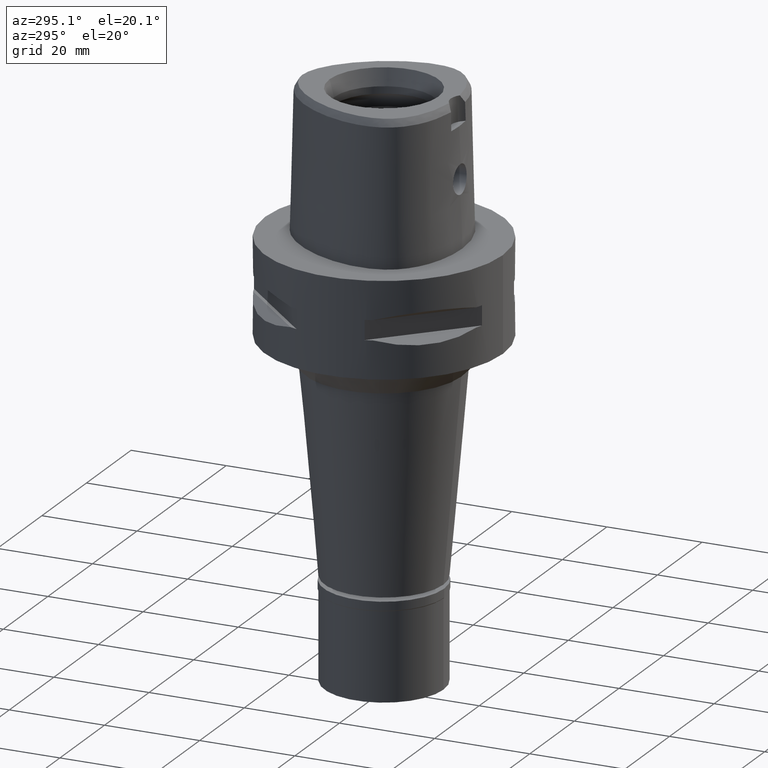
[diagram: clean part render]
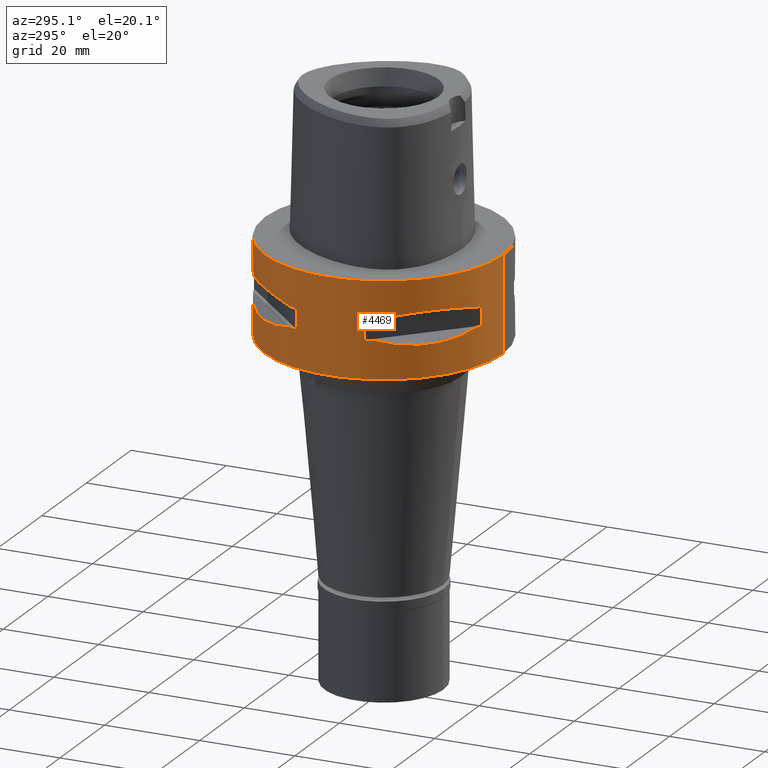
[diagram: same view with one face highlighted and labeled with its STEP entity id]
A machine part, auxiliary view. The second image highlights one B-rep face of the part: STEP entity #4469.
In plain terms, the highlighted cylindrical surface (partial cylindrical patch) has radius 25 mm, axis along (0, 0, -1).
Its self-contained STEP definition (entity closure, byte-faithful):
#33 = CARTESIAN_POINT ( 'NONE',  ( -20.97251445226615019, 13.60713573002994181, -13.06082541678091324 ) ) ;
#84 = CARTESIAN_POINT ( 'NONE',  ( -8.646484890751999330, -23.45715880140000209, -7.949999999998999201 ) ) ;
#101 = CARTESIAN_POINT ( 'NONE',  ( 0.0000000000000000000, 1.275959500031999927E-14, -7.950000000000000178 ) ) ;
#109 = CARTESIAN_POINT ( 'NONE',  ( -11.99636231264436859, -22.00752022556849141, -7.175618606703324964 ) ) ;
#122 = CIRCLE ( 'NONE', #3397, 25.00000000000000000 ) ;
#134 = AXIS2_PLACEMENT_3D ( 'NONE', #1777, #4801, #582 ) ;
#137 = VERTEX_POINT ( 'NONE', #3194 ) ;
#250 = VERTEX_POINT ( 'NONE', #3787 ) ;
#259 = CARTESIAN_POINT ( 'NONE',  ( 0.0000000000000000000, 1.275959500031999927E-14, 0.0000000000000000000 ) ) ;
#260 = CARTESIAN_POINT ( 'NONE',  ( -23.45715880140000209, -8.646484890756999775, -12.05000000000000071 ) ) ;
#272 = VERTEX_POINT ( 'NONE', #1405 ) ;
#274 = EDGE_CURVE ( 'NONE', #2301, #1001, #772, .T. ) ;
#313 = CARTESIAN_POINT ( 'NONE',  ( -13.60713573003076249, -20.97251445226584110, -13.06082541678113174 ) ) ;
#324 = CARTESIAN_POINT ( 'NONE',  ( -16.42437865147239151, 18.93096040785500378, -6.622505547239580181 ) ) ;
#376 = AXIS2_PLACEMENT_3D ( 'NONE', #2982, #3382, #4195 ) ;
#385 = CARTESIAN_POINT ( 'NONE',  ( -19.18226349636000805, 16.07509500021993887, -13.33749867752047358 ) ) ;
#485 = CARTESIAN_POINT ( 'NONE',  ( -20.06077645874711379, -15.02693924547571847, -6.733132781305682713 ) ) ;
#550 = DIRECTION ( 'NONE',  ( -0.9581110799190402094, -0.2863968549694120291, 0.0000000000000000000 ) ) ;
#581 = CARTESIAN_POINT ( 'NONE',  ( -22.58788056562029922, -10.78455809745187111, -12.56798337782941744 ) ) ;
#582 = DIRECTION ( 'NONE',  ( -0.9382863520558295534, 0.3458593956303108730, 0.0000000000000000000 ) ) ;
#620 = CARTESIAN_POINT ( 'NONE',  ( 0.0000000000000000000, 1.275959500031999927E-14, -7.950000000000000178 ) ) ;
#642 = DIRECTION ( 'NONE',  ( 0.0000000000000000000, 0.0000000000000000000, -1.000000000000000000 ) ) ;
#663 = DIRECTION ( 'NONE',  ( 0.0000000000000000000, -1.000000000000000000, 0.0000000000000000000 ) ) ;
#664 = CARTESIAN_POINT ( 'NONE',  ( -18.92421359266165126, -16.43106916201666934, -13.37747608848409264 ) ) ;
#667 = ORIENTED_EDGE ( 'NONE', *, *, #2480, .F. ) ;
#686 = CARTESIAN_POINT ( 'NONE',  ( -20.02826730454556170, -15.06560254766883666, -13.27075471794798744 ) ) ;
#726 = ORIENTED_EDGE ( 'NONE', *, *, #1334, .T. ) ;
#749 = ORIENTED_EDGE ( 'NONE', *, *, #1706, .T. ) ;
#752 = AXIS2_PLACEMENT_3D ( 'NONE', #2122, #642, #2219 ) ;
#753 = CARTESIAN_POINT ( 'NONE',  ( -13.48572973711170953, 21.05082155772122832, -13.04323036965318039 ) ) ;
#772 = CIRCLE ( 'NONE', #2213, 25.00000000000000000 ) ;
#783 = CARTESIAN_POINT ( 'NONE',  ( -23.45715880140000209, 8.646484890751999330, -12.05000000000000071 ) ) ;
#826 = ORIENTED_EDGE ( 'NONE', *, *, #3730, .T. ) ;
#877 = EDGE_LOOP ( 'NONE', ( #2470, #3795, #4261, #1036, #749, #2183, #1690, #2415 ) ) ;
#900 = EDGE_CURVE ( 'NONE', #1409, #3745, #4224, .T. ) ;
#933 = FACE_OUTER_BOUND ( 'NONE', #4647, .T. ) ;
#947 = LINE ( 'NONE', #4814, #4533 ) ;
#977 = CARTESIAN_POINT ( 'NONE',  ( -8.646484890751999330, 23.45715880140000209, -7.949999999998999201 ) ) ;
#1001 = VERTEX_POINT ( 'NONE', #4134 ) ;
#1036 = ORIENTED_EDGE ( 'NONE', *, *, #4530, .F. ) ;
#1053 = B_SPLINE_CURVE_WITH_KNOTS ( 'NONE', 3,
 ( #3751, #4509, #3384, #1136, #1944, #2579, #4531, #753, #4951, #4925, #2640, #4196, #1851, #385, #3847, #1544, #3052, #4595, #1068, #3459, #33, #1164, #2664, #783 ),
 .UNSPECIFIED., .F., .F.,
 ( 4, 1, 1, 1, 1, 1, 2, 2, 2, 1, 1, 1, 1, 1, 2, 2, 4 ),
 ( 0.0000000000000000000, 0.1250000000000042744, 0.1875000000000064115, 0.2187500000000075218, 0.2343750000000079659, 0.2421875000000081601, 0.2460937500000082989, 0.2500000000000084377, 0.5000000000000065503, 0.6250000000000055511, 0.6875000000000051070, 0.7187500000000047740, 0.7343750000000045519, 0.7421875000000042188, 0.7460937500000041078, 0.7500000000000039968, 1.000000000000000000 ),
 .UNSPECIFIED. ) ;
#1065 = CARTESIAN_POINT ( 'NONE',  ( -21.82791133048418786, -12.20403021317722292, -12.83722430138600323 ) ) ;
#1068 = CARTESIAN_POINT ( 'NONE',  ( -20.92801700160071476, 13.67544437571354266, -13.07054629644097687 ) ) ;
#1072 = CARTESIAN_POINT ( 'NONE',  ( 0.0000000000000000000, 25.00000000000000000, 0.0000000000000000000 ) ) ;
#1103 = CARTESIAN_POINT ( 'NONE',  ( -22.82437128824117778, 10.36318218117757084, -7.507495686413086844 ) ) ;
#1110 = VERTEX_POINT ( 'NONE', #1223 ) ;
#1111 = AXIS2_PLACEMENT_3D ( 'NONE', #3129, #4672, #1998 ) ;
#1136 = CARTESIAN_POINT ( 'NONE',  ( -12.20403021318853476, 21.82791133048002763, -12.83722430138890225 ) ) ;
#1139 = VERTEX_POINT ( 'NONE', #4431 ) ;
#1162 = EDGE_CURVE ( 'NONE', #250, #1959, #3660, .T. ) ;
#1164 = CARTESIAN_POINT ( 'NONE',  ( -21.99328990738197120, 12.03062603426555199, -12.83394786308387481 ) ) ;
#1223 = CARTESIAN_POINT ( 'NONE',  ( -23.45715880140000209, -8.646484890751999330, -7.949999999998999201 ) ) ;
#1290 = CARTESIAN_POINT ( 'NONE',  ( -23.45715880140000209, 8.646484890751999330, -12.05000000000000071 ) ) ;
#1324 = CIRCLE ( 'NONE', #4130, 24.99999999999999645 ) ;
#1332 = VERTEX_POINT ( 'NONE', #4151 ) ;
#1333 = CARTESIAN_POINT ( 'NONE',  ( -7.159921374235000080, -23.95277699797999915, -12.05000000000000071 ) ) ;
#1334 = EDGE_CURVE ( 'NONE', #1139, #4841, #4072, .T. ) ;
#1355 = CARTESIAN_POINT ( 'NONE',  ( -10.36318218122984902, -22.82437128822189010, -7.507495686399605184 ) ) ;
#1405 = CARTESIAN_POINT ( 'NONE',  ( -23.95277699797999915, -7.159921374235000080, -7.950000000000000178 ) ) ;
#1409 = VERTEX_POINT ( 'NONE', #84 ) ;
#1412 = VECTOR ( 'NONE', #4904, 1000.000000000000000 ) ;
#1416 = CARTESIAN_POINT ( 'NONE',  ( -14.85488513037629943, -20.11654071403241417, -13.22076716108376360 ) ) ;
#1456 = CARTESIAN_POINT ( 'NONE',  ( -10.36314631865845293, 22.82438450743504887, -7.507504930511911923 ) ) ;
#1469 = CARTESIAN_POINT ( 'NONE',  ( -21.20561591939681989, -13.24197703503267753, -13.00691327926098140 ) ) ;
#1475 = B_SPLINE_CURVE_WITH_KNOTS ( 'NONE', 3,
 ( #3922, #2019, #1716, #485, #4043, #3535, #3105, #109, #1355, #2110 ),
 .UNSPECIFIED., .F., .F.,
 ( 4, 2, 2, 2, 4 ),
 ( 0.0000000000000000000, 0.2500000000000001665, 0.5000000000000003331, 0.7500000000000001110, 1.000000000000000000 ),
 .UNSPECIFIED. ) ;
#1509 = CARTESIAN_POINT ( 'NONE',  ( -23.95277699797999915, -7.159921374230999724, -7.950000000000000178 ) ) ;
#1515 = CIRCLE ( 'NONE', #1111, 24.99999999999999645 ) ;
#1531 = CARTESIAN_POINT ( 'NONE',  ( -7.159921374230999724, -23.95277699797999915, -12.05000000000000071 ) ) ;
#1544 = CARTESIAN_POINT ( 'NONE',  ( -20.56020460721917331, 14.22535762329778386, -13.14488865845300047 ) ) ;
#1645 = EDGE_CURVE ( 'NONE', #2763, #4841, #3767, .T. ) ;
#1652 = CIRCLE ( 'NONE', #4457, 24.99999999999999645 ) ;
#1690 = ORIENTED_EDGE ( 'NONE', *, *, #3939, .T. ) ;
#1706 = EDGE_CURVE ( 'NONE', #2853, #1332, #2299, .T. ) ;
#1716 = CARTESIAN_POINT ( 'NONE',  ( -22.00754773658079344, -11.99631184311071586, -7.175632472892016445 ) ) ;
#1717 = VERTEX_POINT ( 'NONE', #1333 ) ;
#1723 = FACE_BOUND ( 'NONE', #2458, .T. ) ;
#1725 = ORIENTED_EDGE ( 'NONE', *, *, #3843, .F. ) ;
#1734 = VECTOR ( 'NONE', #3420, 1000.000000000000000 ) ;
#1737 = VERTEX_POINT ( 'NONE', #977 ) ;
#1751 = CARTESIAN_POINT ( 'NONE',  ( -8.646484890751999330, -23.45715880140000209, -12.05000000000000071 ) ) ;
#1765 = DIRECTION ( 'NONE',  ( 0.0000000000000000000, 0.0000000000000000000, 1.000000000000000000 ) ) ;
#1776 = CARTESIAN_POINT ( 'NONE',  ( -21.41803043592453548, -12.89853354821786446, -12.95342092614003171 ) ) ;
#1777 = CARTESIAN_POINT ( 'NONE',  ( 0.0000000000000000000, 1.275959500031999927E-14, -7.950000000000000178 ) ) ;
#1806 = LINE ( 'NONE', #1072, #1412 ) ;
#1818 = ORIENTED_EDGE ( 'NONE', *, *, #4947, .T. ) ;
#1839 = DIRECTION ( 'NONE',  ( 0.0000000000000000000, 0.0000000000000000000, 1.000000000000000000 ) ) ;
#1851 = CARTESIAN_POINT ( 'NONE',  ( -18.30096971346383938, 17.05439749819285566, -13.37751056790111903 ) ) ;
#1859 = EDGE_CURVE ( 'NONE', #272, #1332, #4942, .T. ) ;
#1944 = CARTESIAN_POINT ( 'NONE',  ( -12.89853354822446718, 21.41803043592210543, -12.95342092614171570 ) ) ;
#1959 = VERTEX_POINT ( 'NONE', #2153 ) ;
#1962 = ORIENTED_EDGE ( 'NONE', *, *, #3377, .T. ) ;
#1998 = DIRECTION ( 'NONE',  ( -0.2863968549694120291, -0.9581110799190402094, 0.0000000000000000000 ) ) ;
#2019 = CARTESIAN_POINT ( 'NONE',  ( -22.82438450745431879, -10.36314631860612856, -7.507504930525399800 ) ) ;
#2093 = CYLINDRICAL_SURFACE ( 'NONE', #4209, 25.00000000000000000 ) ;
#2110 = CARTESIAN_POINT ( 'NONE',  ( -8.646484890751999330, -23.45715880140000209, -7.949999999998999201 ) ) ;
#2115 = DIRECTION ( 'NONE',  ( -0.9382863520558295534, -0.3458593956303108730, 0.0000000000000000000 ) ) ;
#2122 = CARTESIAN_POINT ( 'NONE',  ( 0.0000000000000000000, 1.275959500031999927E-14, -12.05000000000000071 ) ) ;
#2153 = CARTESIAN_POINT ( 'NONE',  ( -23.95277699797999915, 7.159921374230999724, -7.950000000000000178 ) ) ;
#2166 = VERTEX_POINT ( 'NONE', #1290 ) ;
#2183 = ORIENTED_EDGE ( 'NONE', *, *, #1859, .F. ) ;
#2194 = CARTESIAN_POINT ( 'NONE',  ( -14.22535762327708397, -20.56020460723788901, -13.14488865845220289 ) ) ;
#2213 = AXIS2_PLACEMENT_3D ( 'NONE', #2890, #1839, #3685 ) ;
#2215 = CARTESIAN_POINT ( 'NONE',  ( -13.67544437571023153, -20.92801700160370970, -13.07054629644085786 ) ) ;
#2219 = DIRECTION ( 'NONE',  ( -0.9581110799190402094, 0.2863968549694120291, 0.0000000000000000000 ) ) ;
#2227 = CARTESIAN_POINT ( 'NONE',  ( -15.02693924554285765, 20.06077645869683579, -6.733132781285451784 ) ) ;
#2299 = CIRCLE ( 'NONE', #2447, 25.00000000000001066 ) ;
#2301 = VERTEX_POINT ( 'NONE', #3905 ) ;
#2316 = CARTESIAN_POINT ( 'NONE',  ( -23.45715880140000209, -8.646484890756999775, -12.05000000000000071 ) ) ;
#2323 = DIRECTION ( 'NONE',  ( -0.2863968549694120291, 0.9581110799190402094, 0.0000000000000000000 ) ) ;
#2343 = VERTEX_POINT ( 'NONE', #3800 ) ;
#2344 = DIRECTION ( 'NONE',  ( 0.0000000000000000000, 0.0000000000000000000, -1.000000000000000000 ) ) ;
#2415 = ORIENTED_EDGE ( 'NONE', *, *, #2618, .T. ) ;
#2444 = AXIS2_PLACEMENT_3D ( 'NONE', #620, #4515, #2506 ) ;
#2447 = AXIS2_PLACEMENT_3D ( 'NONE', #4453, #4144, #2115 ) ;
#2458 = EDGE_LOOP ( 'NONE', ( #2935, #1725, #1962, #667, #726, #4327, #4499, #3455 ) ) ;
#2470 = ORIENTED_EDGE ( 'NONE', *, *, #900, .T. ) ;
#2477 = CARTESIAN_POINT ( 'NONE',  ( -13.62920640916616577, -20.95817024473919687, -13.06397973560672554 ) ) ;
#2480 = EDGE_CURVE ( 'NONE', #1139, #2166, #1053, .T. ) ;
#2506 = DIRECTION ( 'NONE',  ( -0.3458593956303108730, -0.9382863520558295534, 0.0000000000000000000 ) ) ;
#2528 = CARTESIAN_POINT ( 'NONE',  ( -16.07509500017260251, -19.18226349640280048, -13.33749867751863327 ) ) ;
#2575 = CARTESIAN_POINT ( 'NONE',  ( -21.05082155772163333, -13.48572973711064193, -13.04323036965292637 ) ) ;
#2577 = EDGE_CURVE ( 'NONE', #1717, #137, #1515, .T. ) ;
#2579 = CARTESIAN_POINT ( 'NONE',  ( -13.24197703503622137, 21.20561591939551249, -13.00691327926188201 ) ) ;
#2618 = EDGE_CURVE ( 'NONE', #1110, #1409, #1475, .T. ) ;
#2640 = CARTESIAN_POINT ( 'NONE',  ( -15.06560254766712248, 20.02826730454206228, -13.27075471794584693 ) ) ;
#2664 = CARTESIAN_POINT ( 'NONE',  ( -22.81626994450270374, 10.38516041961251268, -12.49816953212508608 ) ) ;
#2709 = ORIENTED_EDGE ( 'NONE', *, *, #4502, .F. ) ;
#2715 = CARTESIAN_POINT ( 'NONE',  ( -7.159921374230999724, 23.95277699797999915, -12.05000000000000071 ) ) ;
#2763 = VERTEX_POINT ( 'NONE', #3345 ) ;
#2786 = CARTESIAN_POINT ( 'NONE',  ( 0.0000000000000000000, 1.275959500031999927E-14, -7.950000000000000178 ) ) ;
#2853 = VERTEX_POINT ( 'NONE', #2316 ) ;
#2870 = CARTESIAN_POINT ( 'NONE',  ( -7.159921374230999724, 23.95277699797999915, -7.950000000000000178 ) ) ;
#2890 = CARTESIAN_POINT ( 'NONE',  ( 0.0000000000000000000, 1.275959500031999927E-14, -20.00000000000000000 ) ) ;
#2901 = CARTESIAN_POINT ( 'NONE',  ( -21.09754014382098930, -13.41274673326371136, -13.03250796600744721 ) ) ;
#2935 = ORIENTED_EDGE ( 'NONE', *, *, #1162, .T. ) ;
#2960 = CARTESIAN_POINT ( 'NONE',  ( 0.0000000000000000000, -25.00000000000000000, 0.0000000000000000000 ) ) ;
#2970 = CARTESIAN_POINT ( 'NONE',  ( -11.99631184318435828, 22.00754773654067264, -7.175632472871786405 ) ) ;
#2982 = CARTESIAN_POINT ( 'NONE',  ( 0.0000000000000000000, 1.275959500031999927E-14, -12.05000000000000071 ) ) ;
#2991 = CARTESIAN_POINT ( 'NONE',  ( -22.00752022560863352, 11.99636231257077057, -7.175618606723545234 ) ) ;
#3016 = CARTESIAN_POINT ( 'NONE',  ( -23.45715880140000209, 8.646484890751999330, -7.949999999998999201 ) ) ;
#3052 = CARTESIAN_POINT ( 'NONE',  ( -20.77616787492827655, 13.90573822668830140, -13.10257122103331362 ) ) ;
#3105 = CARTESIAN_POINT ( 'NONE',  ( -15.02698525050126754, -20.06074199764948673, -6.733118915116992120 ) ) ;
#3129 = CARTESIAN_POINT ( 'NONE',  ( 0.0000000000000000000, 1.275959500031999927E-14, -12.05000000000000071 ) ) ;
#3148 = CIRCLE ( 'NONE', #752, 24.99999999999999645 ) ;
#3170 = VECTOR ( 'NONE', #4191, 1000.000000000000000 ) ;
#3194 = CARTESIAN_POINT ( 'NONE',  ( -8.646484890751999330, -23.45715880140000209, -12.05000000000000071 ) ) ;
#3195 = B_SPLINE_CURVE_WITH_KNOTS ( 'NONE', 3,
 ( #260, #4028, #581, #1065, #1776, #1469, #2901, #2575, #4459, #4125, #686, #664, #3748, #2528, #1416, #2194, #3307, #4876, #2215, #2477, #313, #3358, #4101, #1751 ),
 .UNSPECIFIED., .F., .F.,
 ( 4, 1, 1, 1, 1, 1, 2, 2, 2, 1, 1, 1, 1, 1, 2, 2, 4 ),
 ( 0.0000000000000000000, 0.1249999999999980294, 0.1874999999999968636, 0.2187499999999962530, 0.2343749999999959754, 0.2421874999999957812, 0.2460937499999955869, 0.2499999999999953926, 0.5000000000000005551, 0.6250000000000031086, 0.6875000000000044409, 0.7187500000000051070, 0.7343750000000054401, 0.7421875000000055511, 0.7460937500000055511, 0.7500000000000055511, 1.000000000000000000 ),
 .UNSPECIFIED. ) ;
#3221 = ORIENTED_EDGE ( 'NONE', *, *, #274, .T. ) ;
#3230 = CARTESIAN_POINT ( 'NONE',  ( 0.0000000000000000000, 1.275959500031999927E-14, 4.190000000000000391 ) ) ;
#3307 = CARTESIAN_POINT ( 'NONE',  ( -13.90573822667720982, -20.77616787493829875, -13.10257122103289262 ) ) ;
#3345 = CARTESIAN_POINT ( 'NONE',  ( -7.159921374235000080, 23.95277699797999915, -7.950000000000000178 ) ) ;
#3348 = CARTESIAN_POINT ( 'NONE',  ( -8.646484890751999330, 23.45715880140000209, -7.949999999998999201 ) ) ;
#3358 = CARTESIAN_POINT ( 'NONE',  ( -12.03062603421342125, -21.99328990740118428, -12.83394786307044555 ) ) ;
#3369 = CARTESIAN_POINT ( 'NONE',  ( -18.93096040785499667, 16.42437865147239506, -6.622496303240421156 ) ) ;
#3377 = EDGE_CURVE ( 'NONE', #3582, #2166, #3148, .T. ) ;
#3382 = DIRECTION ( 'NONE',  ( 0.0000000000000000000, 0.0000000000000000000, -1.000000000000000000 ) ) ;
#3384 = CARTESIAN_POINT ( 'NONE',  ( -10.78455809746692928, 22.58788056561475344, -12.56798337783328634 ) ) ;
#3397 = AXIS2_PLACEMENT_3D ( 'NONE', #259, #4505, #663 ) ;
#3420 = DIRECTION ( 'NONE',  ( 0.0000000000000000000, 0.0000000000000000000, 1.000000000000000000 ) ) ;
#3455 = ORIENTED_EDGE ( 'NONE', *, *, #4170, .T. ) ;
#3459 = CARTESIAN_POINT ( 'NONE',  ( -20.95817024473767987, 13.62920640916783555, -13.06397973560677883 ) ) ;
#3535 = CARTESIAN_POINT ( 'NONE',  ( -16.42437865151179111, -18.93096040781557221, -6.622496303226940384 ) ) ;
#3582 = VERTEX_POINT ( 'NONE', #4558 ) ;
#3660 = CIRCLE ( 'NONE', #134, 25.00000000000001066 ) ;
#3685 = DIRECTION ( 'NONE',  ( 0.0000000000000000000, 1.000000000000000000, 0.0000000000000000000 ) ) ;
#3730 = EDGE_CURVE ( 'NONE', #3742, #2343, #122, .T. ) ;
#3742 = VERTEX_POINT ( 'NONE', #4773 ) ;
#3745 = VERTEX_POINT ( 'NONE', #4456 ) ;
#3748 = CARTESIAN_POINT ( 'NONE',  ( -17.05439749816580886, -18.30096971348830692, -13.37751056790007809 ) ) ;
#3751 = CARTESIAN_POINT ( 'NONE',  ( -8.646484890756999775, 23.45715880140000209, -12.05000000000000071 ) ) ;
#3767 = LINE ( 'NONE', #2870, #3170 ) ;
#3787 = CARTESIAN_POINT ( 'NONE',  ( -23.45715880140000209, 8.646484890751999330, -7.949999999998999201 ) ) ;
#3791 = EDGE_CURVE ( 'NONE', #2763, #1737, #1324, .T. ) ;
#3795 = ORIENTED_EDGE ( 'NONE', *, *, #4190, .F. ) ;
#3800 = CARTESIAN_POINT ( 'NONE',  ( 0.0000000000000000000, 25.00000000000000000, 0.0000000000000000000 ) ) ;
#3843 = EDGE_CURVE ( 'NONE', #3582, #1959, #947, .T. ) ;
#3847 = CARTESIAN_POINT ( 'NONE',  ( -20.11654071400031540, 14.85488513041178749, -13.22076716108514027 ) ) ;
#3902 = DIRECTION ( 'NONE',  ( 0.0000000000000000000, -1.000000000000000000, 0.0000000000000000000 ) ) ;
#3905 = CARTESIAN_POINT ( 'NONE',  ( 0.0000000000000000000, 25.00000000000000000, -20.00000000000000000 ) ) ;
#3916 = DIRECTION ( 'NONE',  ( 0.0000000000000000000, 0.0000000000000000000, 1.000000000000000000 ) ) ;
#3922 = CARTESIAN_POINT ( 'NONE',  ( -23.45715880140000209, -8.646484890751999330, -7.949999999998999201 ) ) ;
#3939 = EDGE_CURVE ( 'NONE', #272, #1110, #1652, .T. ) ;
#3991 = VECTOR ( 'NONE', #2344, 1000.000000000000000 ) ;
#4002 = FACE_BOUND ( 'NONE', #877, .T. ) ;
#4014 = DIRECTION ( 'NONE',  ( 0.0000000000000000000, 0.0000000000000000000, 1.000000000000000000 ) ) ;
#4028 = CARTESIAN_POINT ( 'NONE',  ( -23.13678124605149833, -9.515641234297431694, -12.27403800212630891 ) ) ;
#4043 = CARTESIAN_POINT ( 'NONE',  ( -18.93096040781556866, -16.42437865151179821, -6.622505547253060953 ) ) ;
#4072 = CIRCLE ( 'NONE', #376, 25.00000000000001066 ) ;
#4101 = CARTESIAN_POINT ( 'NONE',  ( -10.38516041956038016, -22.81626994452193458, -12.49816953211165860 ) ) ;
#4125 = CARTESIAN_POINT ( 'NONE',  ( -21.00321793043546847, -13.55971422200801157, -13.05400030967367364 ) ) ;
#4130 = AXIS2_PLACEMENT_3D ( 'NONE', #101, #3916, #2323 ) ;
#4134 = CARTESIAN_POINT ( 'NONE',  ( 0.0000000000000000000, -25.00000000000000000, -20.00000000000000000 ) ) ;
#4144 = DIRECTION ( 'NONE',  ( 0.0000000000000000000, 0.0000000000000000000, -1.000000000000000000 ) ) ;
#4151 = CARTESIAN_POINT ( 'NONE',  ( -23.95277699797999915, -7.159921374230999724, -12.05000000000000071 ) ) ;
#4170 = EDGE_CURVE ( 'NONE', #1737, #250, #4342, .T. ) ;
#4190 = EDGE_CURVE ( 'NONE', #1717, #3745, #4286, .T. ) ;
#4191 = DIRECTION ( 'NONE',  ( 0.0000000000000000000, 0.0000000000000000000, -1.000000000000000000 ) ) ;
#4195 = DIRECTION ( 'NONE',  ( -0.3458593956303108730, 0.9382863520558295534, 0.0000000000000000000 ) ) ;
#4196 = CARTESIAN_POINT ( 'NONE',  ( -16.43106916206558665, 18.92421359260760383, -13.37747608848198411 ) ) ;
#4209 = AXIS2_PLACEMENT_3D ( 'NONE', #3230, #4409, #3902 ) ;
#4224 = CIRCLE ( 'NONE', #2444, 25.00000000000001066 ) ;
#4261 = ORIENTED_EDGE ( 'NONE', *, *, #2577, .T. ) ;
#4286 = LINE ( 'NONE', #1531, #1734 ) ;
#4327 = ORIENTED_EDGE ( 'NONE', *, *, #1645, .F. ) ;
#4342 = B_SPLINE_CURVE_WITH_KNOTS ( 'NONE', 3,
 ( #3348, #1456, #2970, #2227, #324, #3369, #4912, #2991, #1103, #3016 ),
 .UNSPECIFIED., .F., .F.,
 ( 4, 2, 2, 2, 4 ),
 ( 0.0000000000000000000, 0.2500000000000000000, 0.5000000000000000000, 0.7500000000000000000, 1.000000000000000000 ),
 .UNSPECIFIED. ) ;
#4409 = DIRECTION ( 'NONE',  ( 0.0000000000000000000, 0.0000000000000000000, -1.000000000000000000 ) ) ;
#4431 = CARTESIAN_POINT ( 'NONE',  ( -8.646484890756999775, 23.45715880140000209, -12.05000000000000071 ) ) ;
#4453 = CARTESIAN_POINT ( 'NONE',  ( 0.0000000000000000000, 1.275959500031999927E-14, -12.05000000000000071 ) ) ;
#4456 = CARTESIAN_POINT ( 'NONE',  ( -7.159921374230999724, -23.95277699797999915, -7.950000000000000178 ) ) ;
#4457 = AXIS2_PLACEMENT_3D ( 'NONE', #2786, #4014, #550 ) ;
#4459 = CARTESIAN_POINT ( 'NONE',  ( -21.01958685664054372, -13.53433973752400377, -13.05032380590162511 ) ) ;
#4469 = ADVANCED_FACE ( 'NONE', ( #933, #1723, #4002 ), #2093, .T. ) ;
#4499 = ORIENTED_EDGE ( 'NONE', *, *, #3791, .T. ) ;
#4502 = EDGE_CURVE ( 'NONE', #3742, #1001, #4899, .T. ) ;
#4505 = DIRECTION ( 'NONE',  ( 0.0000000000000000000, 0.0000000000000000000, -1.000000000000000000 ) ) ;
#4509 = CARTESIAN_POINT ( 'NONE',  ( -9.515641234306031038, 23.13678124604833286, -12.27403800212850093 ) ) ;
#4515 = DIRECTION ( 'NONE',  ( 0.0000000000000000000, 0.0000000000000000000, 1.000000000000000000 ) ) ;
#4530 = EDGE_CURVE ( 'NONE', #2853, #137, #3195, .T. ) ;
#4531 = CARTESIAN_POINT ( 'NONE',  ( -13.41274673326554101, 21.09754014382029297, -13.03250796600789663 ) ) ;
#4533 = VECTOR ( 'NONE', #1765, 1000.000000000000000 ) ;
#4558 = CARTESIAN_POINT ( 'NONE',  ( -23.95277699797999915, 7.159921374235000080, -12.05000000000000071 ) ) ;
#4595 = CARTESIAN_POINT ( 'NONE',  ( -20.88268233905774807, 13.74471461762043312, -13.08031795579756640 ) ) ;
#4647 = EDGE_LOOP ( 'NONE', ( #3221, #2709, #826, #1818 ) ) ;
#4672 = DIRECTION ( 'NONE',  ( 0.0000000000000000000, 0.0000000000000000000, -1.000000000000000000 ) ) ;
#4692 = VECTOR ( 'NONE', #4826, 1000.000000000000000 ) ;
#4773 = CARTESIAN_POINT ( 'NONE',  ( 0.0000000000000000000, -25.00000000000000000, 0.0000000000000000000 ) ) ;
#4801 = DIRECTION ( 'NONE',  ( 0.0000000000000000000, 0.0000000000000000000, 1.000000000000000000 ) ) ;
#4814 = CARTESIAN_POINT ( 'NONE',  ( -23.95277699797999915, 7.159921374230999724, -12.05000000000000071 ) ) ;
#4826 = DIRECTION ( 'NONE',  ( 0.0000000000000000000, 0.0000000000000000000, -1.000000000000000000 ) ) ;
#4841 = VERTEX_POINT ( 'NONE', #2715 ) ;
#4876 = CARTESIAN_POINT ( 'NONE',  ( -13.74471461761470792, -20.88268233906292437, -13.08031795579734791 ) ) ;
#4899 = LINE ( 'NONE', #2960, #4692 ) ;
#4904 = DIRECTION ( 'NONE',  ( 0.0000000000000000000, 0.0000000000000000000, -1.000000000000000000 ) ) ;
#4912 = CARTESIAN_POINT ( 'NONE',  ( -20.06074199769975763, 15.02698525043419231, -6.733118915137212390 ) ) ;
#4925 = CARTESIAN_POINT ( 'NONE',  ( -13.55971422200804888, 21.00321793043550755, -13.05400030967368785 ) ) ;
#4942 = LINE ( 'NONE', #1509, #3991 ) ;
#4947 = EDGE_CURVE ( 'NONE', #2343, #2301, #1806, .T. ) ;
#4951 = CARTESIAN_POINT ( 'NONE',  ( -13.53433973752455621, 21.01958685664031989, -13.05032380590174235 ) ) ;